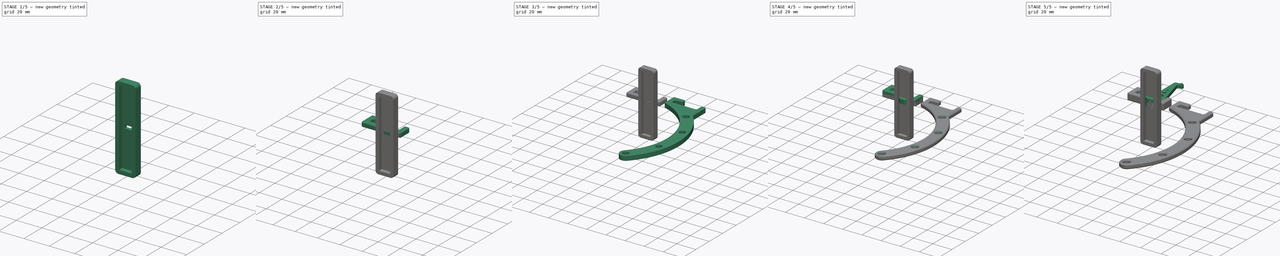
[diagram: build sequence overview — one tinted view per stage of 5, left to right]
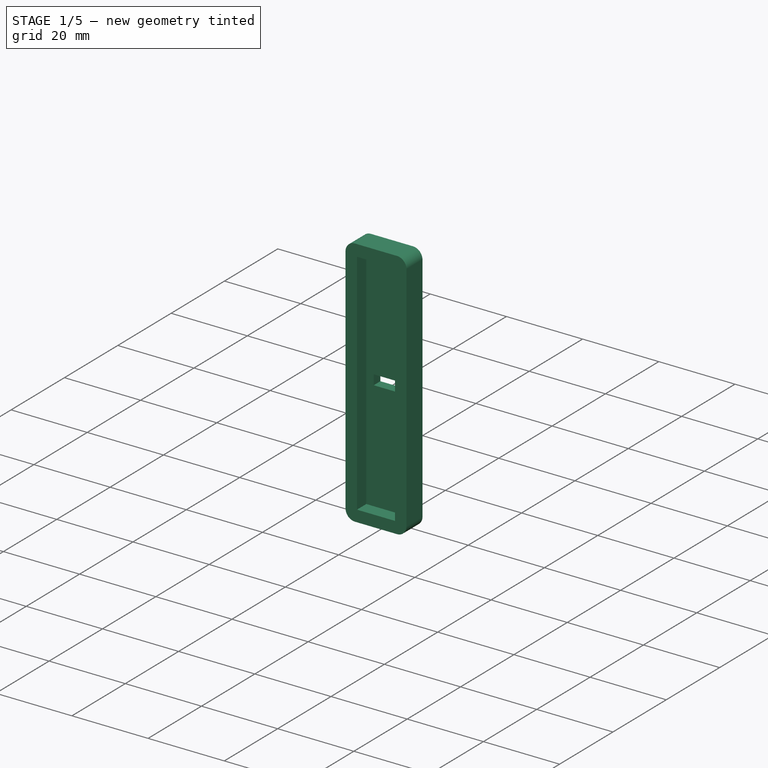
[diagram: stage 1 of 5 — iso view after this stage's code; geometry added in this stage tinted green]
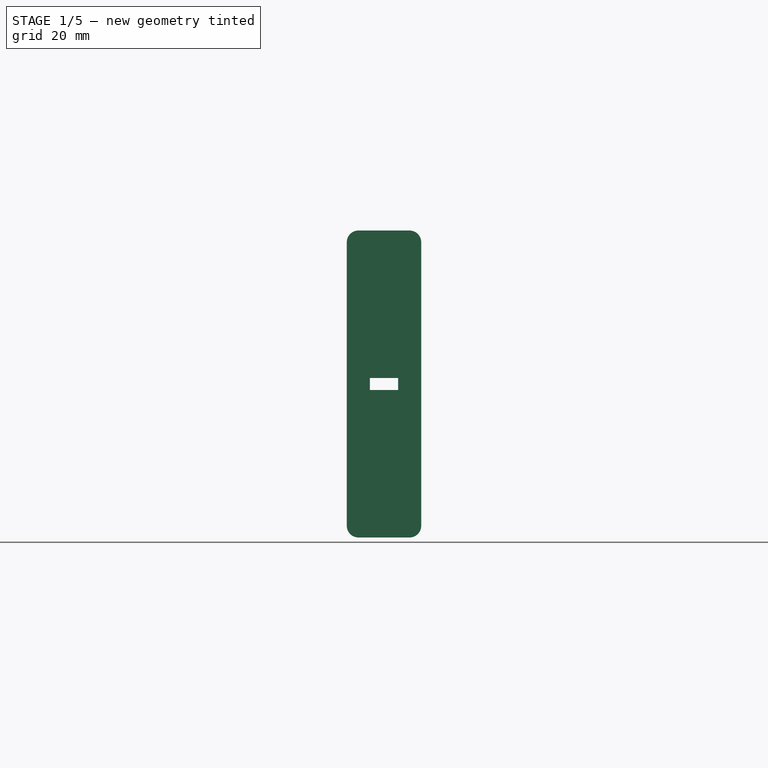
[diagram: stage 1 of 5 — front view after this stage's code; geometry added in this stage tinted green]
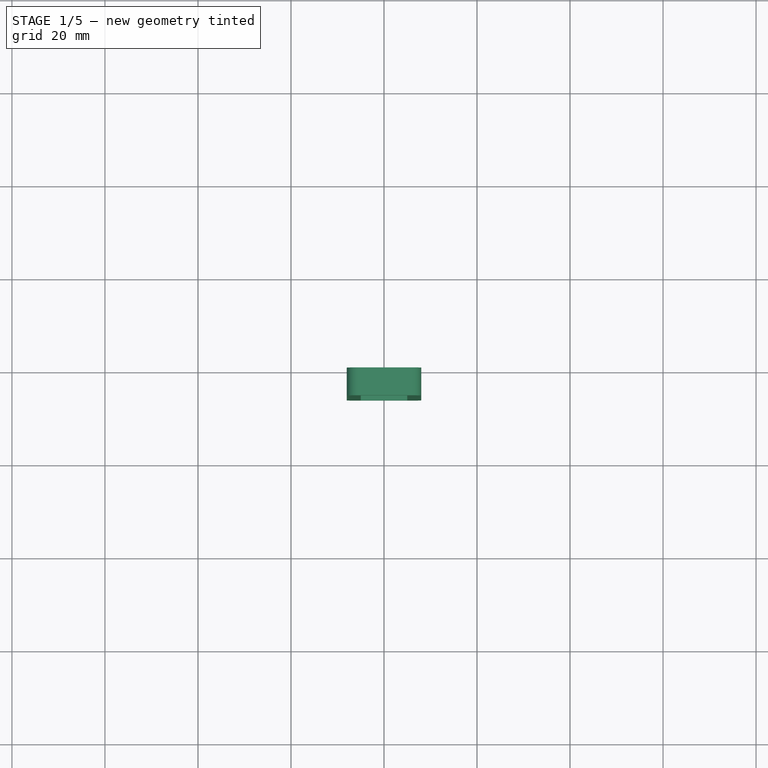
[diagram: stage 1 of 5 — top view after this stage's code; geometry added in this stage tinted green]
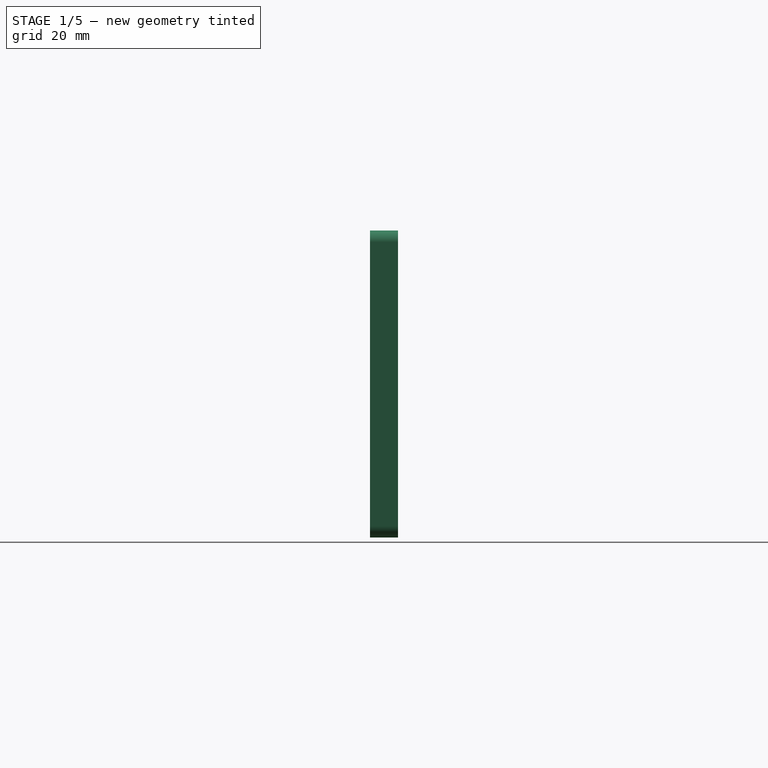
[diagram: stage 1 of 5 — right view after this stage's code; geometry added in this stage tinted green]
FCSTD DOCUMENT  (FreeCAD 0.20R29177 (Git))
Label: 2020-cable-holder
License: All rights reserved
LicenseURL: http://en.wikipedia.org/wiki/All_rights_reserved
objects: Sketcher::SketchObject×9, PartDesign::Pad×8, PartDesign::Fillet×6, PartDesign::Body×5, PartDesign::Chamfer×2, PartDesign::Pocket×1
note: 48 computed .brp shape members not serialized (recipe doc carries the construction recipe); baked Part::Feature solids carry a one-line shape summary decoded from their .brp

FEATURE [Sketcher::SketchObject] Sketch006
  FullyConstrained = true
  MapMode = 5
  Placement = pos=(0,0,0) rot=(1,0,0;1.5708rad)
  Support = -> [XZ_Plane004]
  sketch-geometry (12):
    g0: LineSegment StartX=-5 StartY=30 StartZ=0 EndX=5 EndY=30 EndZ=0
    g1: LineSegment StartX=5 StartY=30 StartZ=0 EndX=5 EndY=-30 EndZ=0
    g2: LineSegment StartX=5 StartY=-30 StartZ=0 EndX=-5 EndY=-30 EndZ=0
    g3: LineSegment StartX=-5 StartY=-30 StartZ=0 EndX=-5 EndY=30 EndZ=0
    g4: LineSegment StartX=-8 StartY=33 StartZ=0 EndX=8 EndY=33 EndZ=0
    g5: LineSegment StartX=8 StartY=33 StartZ=0 EndX=8 EndY=-33 EndZ=0
    g6: LineSegment StartX=8 StartY=-33 StartZ=0 EndX=-8 EndY=-33 EndZ=0
    g7: LineSegment StartX=-8 StartY=-33 StartZ=0 EndX=-8 EndY=33 EndZ=0
    g8: LineSegment StartX=-3.05 StartY=1.3 StartZ=0 EndX=3.05 EndY=1.3 EndZ=0
    g9: LineSegment StartX=3.05 StartY=1.3 StartZ=0 EndX=3.05 EndY=-1.3 EndZ=0
    g10: LineSegment StartX=3.05 StartY=-1.3 StartZ=0 EndX=-3.05 EndY=-1.3 EndZ=0
    g11: LineSegment StartX=-3.05 StartY=-1.3 StartZ=0 EndX=-3.05 EndY=1.3 EndZ=0
  constraints (33):
    c: Coincident(g0,g1)
    c: Coincident(g1,g2)
    c: Coincident(g2,g3)
    c: Coincident(g3,g0)
    c: Horizontal(g0)
    c: Horizontal(g2)
    c: Vertical(g1)
    c: Vertical(g3)
    c: DistanceY(g1,g1) = 60
    c: DistanceX(g0,g0) = 10
    c: Symmetric(g1,g0,g-1)
    c: Coincident(g4,g5)
    c: Coincident(g5,g6)
    c: Coincident(g6,g7)
    c: Coincident(g7,g4)
    c: Horizontal(g4)
    c: Horizontal(g6)
    c: Vertical(g5)
    c: Vertical(g7)
    c: Symmetric(g5,g4,g-1)
    c: DistanceY(g0,g4) = 3
    c: DistanceX(g4,g0) = 3
    c: Coincident(g8,g9)
    c: Coincident(g9,g10)
    c: Coincident(g10,g11)
    c: Coincident(g11,g8)
    c: Horizontal(g8)
    c: Horizontal(g10)
    c: Vertical(g9)
    c: Vertical(g11)
    c: Symmetric(g9,g8,g-1)
    c: DistanceY(g9,g9) = 2.6
    c: DistanceX(g8,g8) = 6.1
FEATURE [PartDesign::Pad] Pad006
  Direction = (0,-1,2e-16)
  Length = 6
  Length2 = 10
  Placement = pos=(0,0,0) rot=(1,0,0;1.5708rad)
  Profile = -> Sketch006
  ReferenceAxis = -> Sketch006 [N_Axis]
  Type = 0
FEATURE [Sketcher::SketchObject] Sketch007
  AttachmentOffset = pos=(0,0,2.5) rot=(0,0,1;0rad)
  FullyConstrained = true
  MapMode = 5
  Placement = pos=(0,-2.5,6e-16) rot=(1,0,0;1.5708rad)
  Support = -> [XZ_Plane004]
  sketch-geometry (4):
    g0: LineSegment StartX=-5 StartY=30 StartZ=0 EndX=5 EndY=30 EndZ=0
    g1: LineSegment StartX=5 StartY=30 StartZ=0 EndX=5 EndY=-30 EndZ=0
    g2: LineSegment StartX=5 StartY=-30 StartZ=0 EndX=-5 EndY=-30 EndZ=0
    g3: LineSegment StartX=-5 StartY=-30 StartZ=0 EndX=-5 EndY=30 EndZ=0
  constraints (11):
    c: Coincident(g0,g1)
    c: Coincident(g1,g2)
    c: Coincident(g2,g3)
    c: Coincident(g3,g0)
    c: Horizontal(g0)
    c: Horizontal(g2)
    c: Vertical(g1)
    c: Vertical(g3)
    c: DistanceY(g1,g1) = 60
    c: DistanceX(g0,g0) = 10
    c: Symmetric(g1,g0,g-1)
FEATURE [PartDesign::Pocket] Pocket
  BaseFeature = -> Pad006
  Direction = (0,1,-2e-16)
  Length = 5
  Length2 = 5
  Placement = pos=(0,0,0) rot=(1,0,0;1.5708rad)
  Profile = -> Sketch007
  ReferenceAxis = -> Sketch007 [N_Axis]
  Reversed = true
  Type = 1
FEATURE [PartDesign::Body] Body003  label="SkadisHookPLAIN"
  Group = -> [Sketch005,Pad005,Fillet003,Fillet004,Sketch008,Pad007,Chamfer001]
  Origin = -> Origin003
  Tip = -> Chamfer001
FEATURE [PartDesign::Fillet] Fillet005
  Base = -> Pocket [Edge5,Edge8,Edge2,Edge1]
  BaseFeature = -> Pocket
  Placement = pos=(0,0,0) rot=(1,0,0;1.5708rad)
  Radius = 2.5
  SupportTransform = false
  UseAllEdges = false
FEATURE [PartDesign::Body] Body004  label="BarMagnetHolder"
  Group = -> [Sketch006,Pad006,Sketch007,Pocket,Fillet005]
  Origin = -> Origin004
  Tip = -> Fillet005
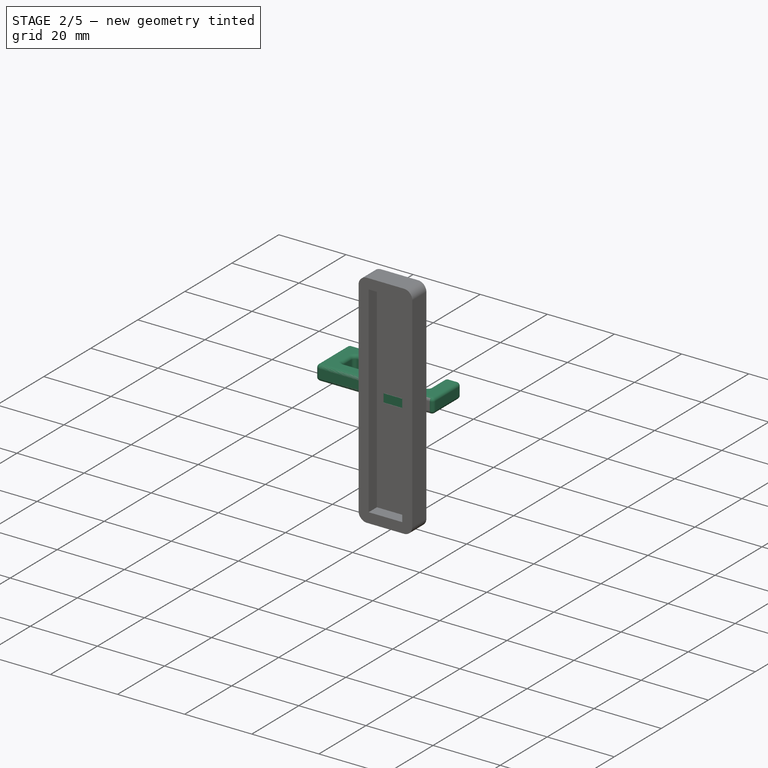
[diagram: stage 2 of 5 — iso view after this stage's code; geometry added in this stage tinted green]
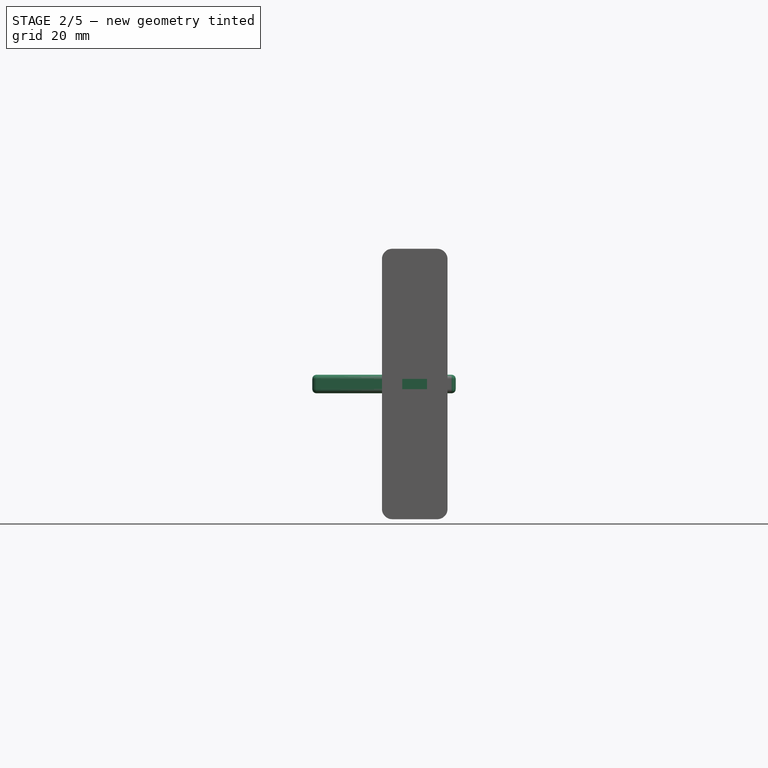
[diagram: stage 2 of 5 — front view after this stage's code; geometry added in this stage tinted green]
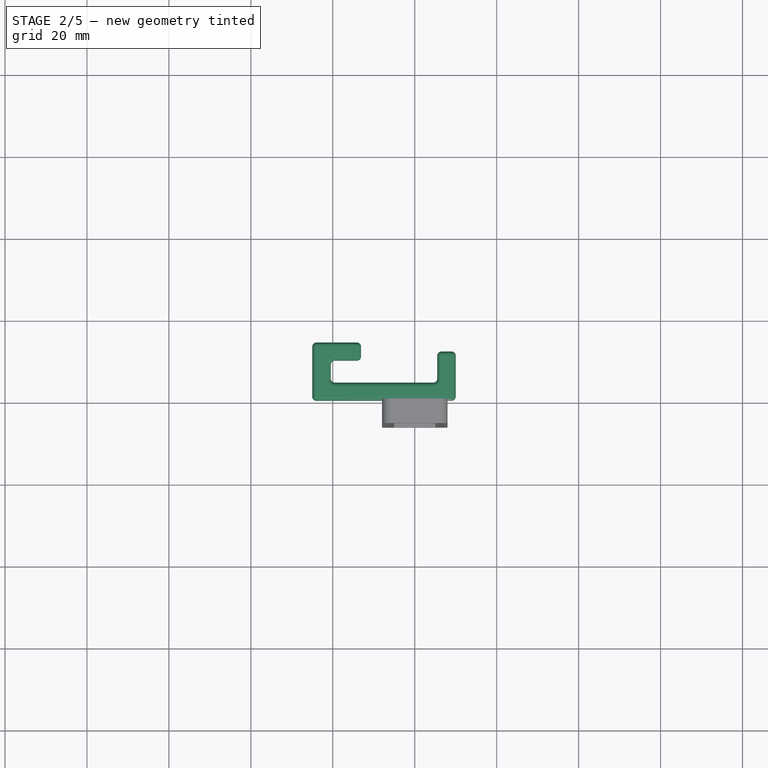
[diagram: stage 2 of 5 — top view after this stage's code; geometry added in this stage tinted green]
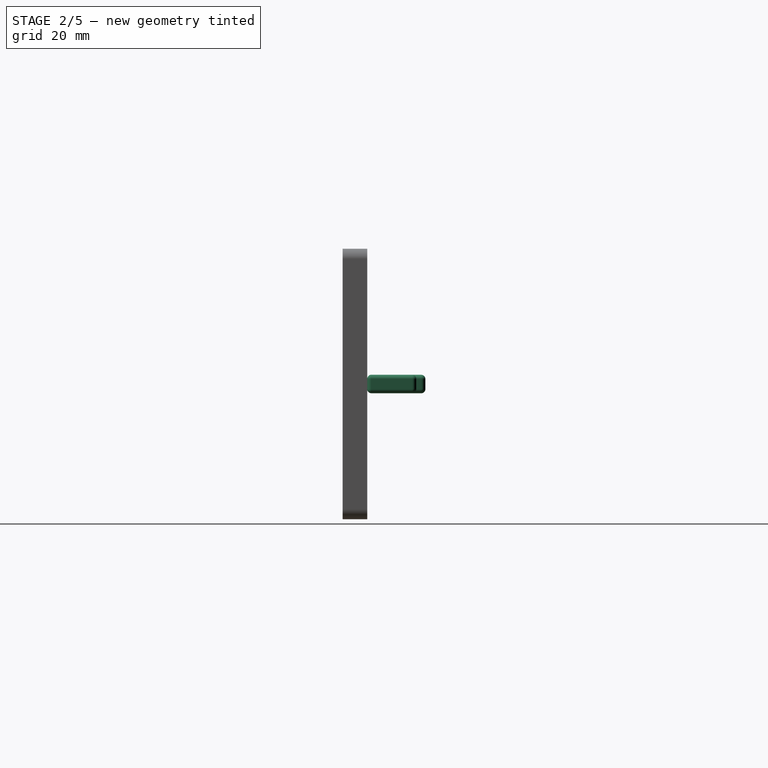
[diagram: stage 2 of 5 — right view after this stage's code; geometry added in this stage tinted green]
FEATURE [PartDesign::Body] Body002  label="TapeHolder"
  Group = -> [Sketch004,Pad004,Fillet002,Chamfer]
  Origin = -> Origin002
  Tip = -> Chamfer
FEATURE [Sketcher::SketchObject] Sketch005  label="SketchBase004"
  FullyConstrained = false
  MapMode = 5
  Support = -> [XY_Plane003]
  sketch-geometry (14):
    g0: LineSegment StartX=-10 StartY=-0.376169 StartZ=0 EndX=10 EndY=-0.376169 EndZ=0
    g1: LineSegment StartX=10 StartY=-0.376169 StartZ=0 EndX=10 EndY=-20.3762 EndZ=0
    g2: LineSegment StartX=10 StartY=-20.3762 StartZ=0 EndX=-10 EndY=-20.3762 EndZ=0
    g3: LineSegment StartX=-10 StartY=-20.3762 StartZ=0 EndX=-10 EndY=-0.376169 EndZ=0
    g4: LineSegment StartX=-25 StartY=0 StartZ=0 EndX=-25 EndY=14.2 EndZ=0
    g5: LineSegment StartX=-25 StartY=14.2 StartZ=0 EndX=-13.1 EndY=14.2 EndZ=0
    g6: LineSegment StartX=-13.1 StartY=14.2 StartZ=0 EndX=-13.1 EndY=9.8 EndZ=0
    g7: LineSegment StartX=-13.1 StartY=9.8 StartZ=0 EndX=-20.5 EndY=9.8 EndZ=0
    g8: LineSegment StartX=-20.5 StartY=9.8 StartZ=0 EndX=-20.5 EndY=4.4 EndZ=0
    g9: LineSegment StartX=-20.5 StartY=4.4 StartZ=0 EndX=5.5 EndY=4.4 EndZ=0
    g10: LineSegment StartX=5.5 StartY=4.4 StartZ=0 EndX=5.5 EndY=12 EndZ=0
    g11: LineSegment StartX=5.5 StartY=12 StartZ=0 EndX=10 EndY=12 EndZ=0
    g12: LineSegment StartX=10 StartY=12 StartZ=0 EndX=10 EndY=0 EndZ=0
    g13: LineSegment StartX=-25 StartY=0 StartZ=0 EndX=10 EndY=0 EndZ=0
  constraints (39):
    c: Coincident(g0,g1)
    c: Coincident(g1,g2)
    c: Coincident(g2,g3)
    c: Coincident(g3,g0)
    c: Horizontal(g2)
    c: Vertical(g1)
    c: Vertical(g3)
    c: Symmetric(g0,g0,g-2)
    c: DistanceX(g2,g2) = 20
    c: DistanceY(g1,g1) = 20
    c: Vertical(g4)
    c: Coincident(g4,g5)
    c: Horizontal(g5)
    c: Coincident(g5,g6)
    c: Vertical(g6)
    c: Coincident(g6,g7)
    c: Horizontal(g7)
    c: Coincident(g7,g8)
    c: Vertical(g8)
    c: Coincident(g8,g9)
    c: Horizontal(g9)
    c: Coincident(g9,g10)
    c: Vertical(g10)
    c: Coincident(g10,g11)
    c: Horizontal(g11)
    c: Coincident(g11,g12)
    c: Vertical(g12)
    c: DistanceX(g9,g9) = 26
    c: DistanceY(g4,g8) = 4.4
    c: DistanceY(g6,g5) = 4.4
    c: DistanceX(g4,g7) = 4.5
    c: DistanceY(g8,g8) = 5.4
    c: DistanceX(g5,g5) = 11.9
    c: DistanceX(g11,g11) = 4.5
    c: DistanceY(g12,g12) = 12
    c: Vertical(g1,g12)
    c: Coincident(g13,g4)
    c: Coincident(g13,g12)
    c: Horizontal(g13)
FEATURE [PartDesign::Pad] Pad005
  Direction = (0,0,1)
  Length = 4.5
  Length2 = 10
  Midplane = true
  Profile = -> Sketch005
  ReferenceAxis = -> Sketch005 [N_Axis]
  Type = 0
FEATURE [PartDesign::Fillet] Fillet003
  Base = -> Pad005 [Edge1,Edge2,Edge11,Edge5,Edge8,Edge14,Edge20,Edge17,Edge23,Edge26]
  BaseFeature = -> Pad005
  Radius = 1
  SupportTransform = false
  UseAllEdges = false
FEATURE [PartDesign::Fillet] Fillet004
  Base = -> Fillet003 [Edge23,Edge44]
  BaseFeature = -> Fillet003
  Radius = 1
  SupportTransform = false
  UseAllEdges = false
FEATURE [Sketcher::SketchObject] Sketch008
  FullyConstrained = true
  MapMode = 5
  Support = -> [XY_Plane003]
  sketch-geometry (4):
    g0: LineSegment StartX=-3 StartY=0 StartZ=0 EndX=3 EndY=0 EndZ=0
    g1: LineSegment StartX=3 StartY=0 StartZ=0 EndX=3 EndY=-2.5 EndZ=0
    g2: LineSegment StartX=3 StartY=-2.5 StartZ=0 EndX=-3 EndY=-2.5 EndZ=0
    g3: LineSegment StartX=-3 StartY=-2.5 StartZ=0 EndX=-3 EndY=0 EndZ=0
  constraints (11):
    c: Coincident(g0,g1)
    c: Coincident(g1,g2)
    c: Coincident(g2,g3)
    c: Coincident(g3,g0)
    c: Horizontal(g2)
    c: Vertical(g1)
    c: Vertical(g3)
    c: PointOnObject(g0,g-1)
    c: Symmetric(g0,g0,g-2)
    c: DistanceX(g0,g0) = 6
    c: DistanceY(g1,g1) = 2.5
FEATURE [PartDesign::Pad] Pad007
  BaseFeature = -> Fillet004
  Direction = (0,0,1)
  Length = 2.5
  Length2 = 10
  Midplane = true
  Profile = -> Sketch008
  ReferenceAxis = -> Sketch008 [N_Axis]
  Type = 0
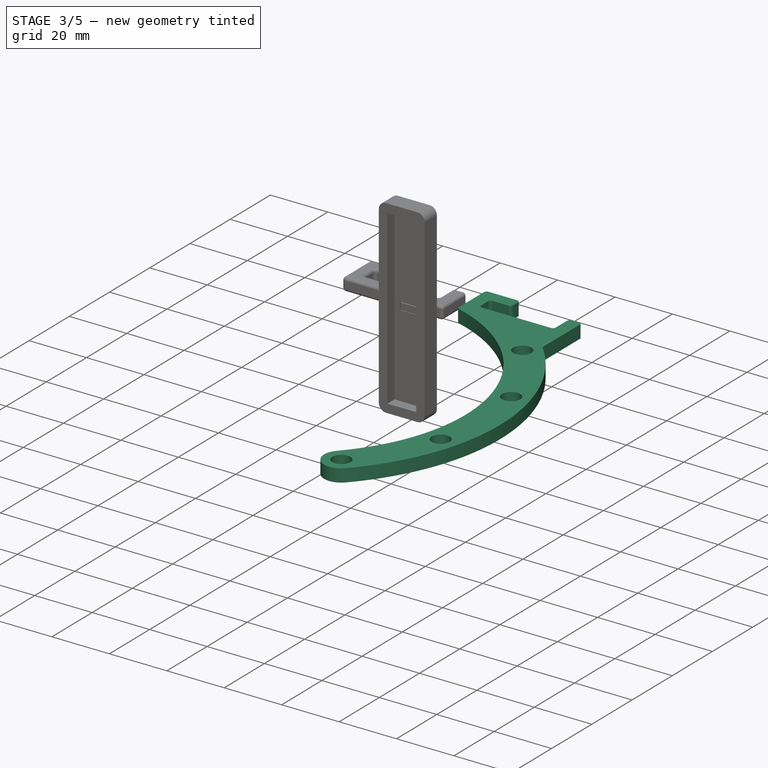
[diagram: stage 3 of 5 — iso view after this stage's code; geometry added in this stage tinted green]
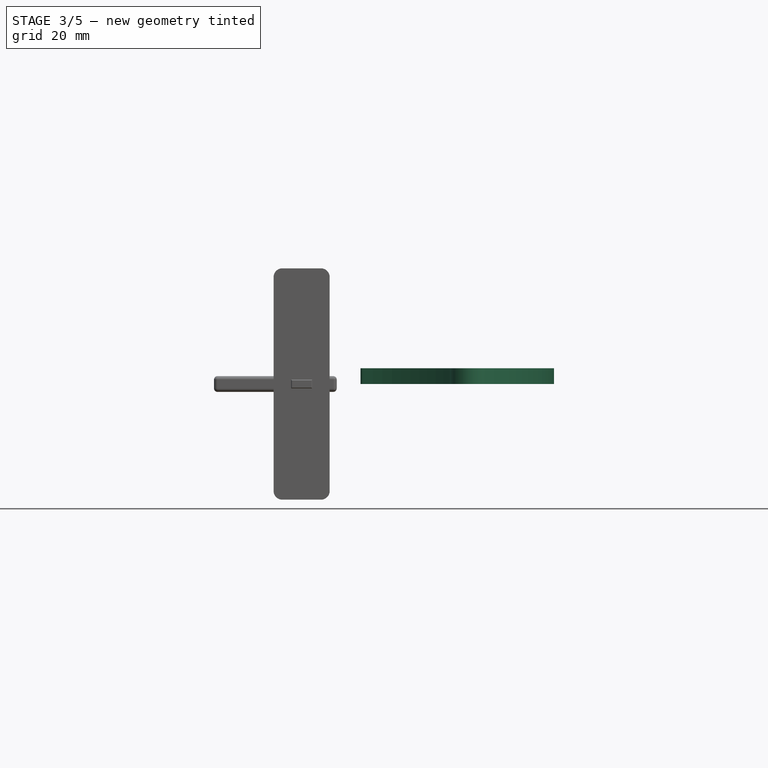
[diagram: stage 3 of 5 — front view after this stage's code; geometry added in this stage tinted green]
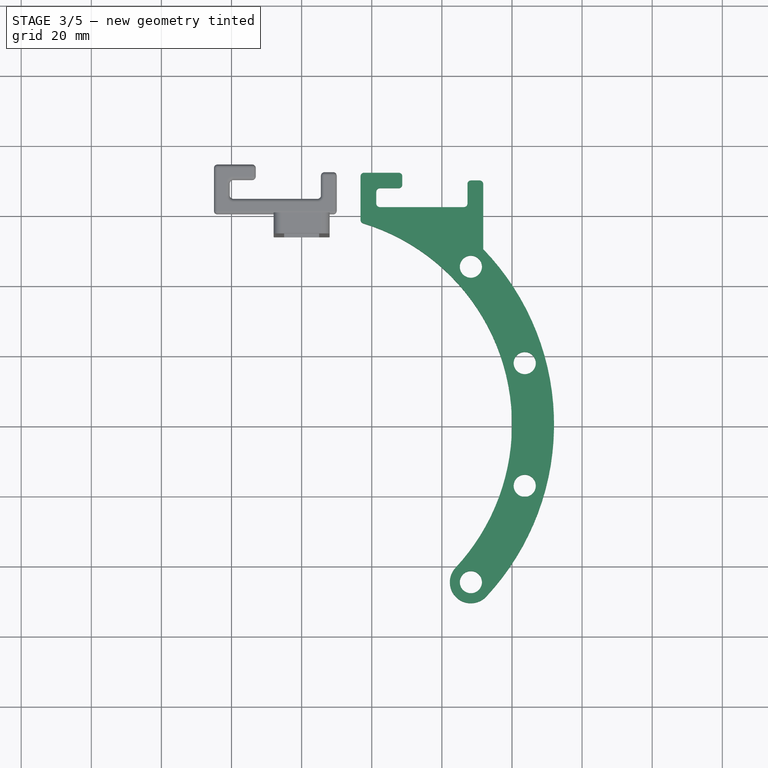
[diagram: stage 3 of 5 — top view after this stage's code; geometry added in this stage tinted green]
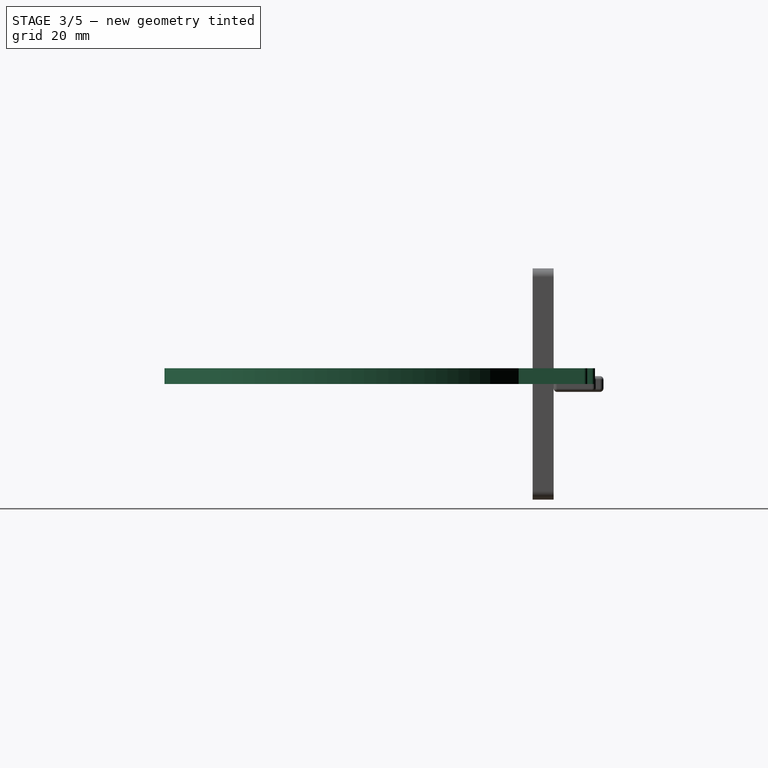
[diagram: stage 3 of 5 — right view after this stage's code; geometry added in this stage tinted green]
FEATURE [PartDesign::Body] Body001  label="SkadisHook"
  Group = -> [Sketch003,Pad003,Fillet,Fillet001]
  Origin = -> Origin001
  Tip = -> Fillet001
FEATURE [Sketcher::SketchObject] Sketch004  label="SketchBase003"
  FullyConstrained = false
  MapMode = 5
  Support = -> [XY_Plane002]
  sketch-geometry (23):
    g0: LineSegment StartX=16.8 StartY=-2.4 StartZ=0 EndX=16.8 EndY=11.8 EndZ=0
    g1: LineSegment StartX=16.8 StartY=11.8 StartZ=0 EndX=28.7 EndY=11.8 EndZ=0
    g2: LineSegment StartX=28.7 StartY=11.8 StartZ=0 EndX=28.7 EndY=7.4 EndZ=0
    g3: LineSegment StartX=28.7 StartY=7.4 StartZ=0 EndX=21.3 EndY=7.4 EndZ=0
    g4: LineSegment StartX=21.3 StartY=7.4 StartZ=0 EndX=21.3 EndY=2 EndZ=0
    g5: LineSegment StartX=21.3 StartY=2 StartZ=0 EndX=47.3 EndY=2 EndZ=0
    g6: LineSegment StartX=47.3 StartY=2 StartZ=0 EndX=47.3 EndY=9.6 EndZ=0
    g7: LineSegment StartX=47.3 StartY=9.6 StartZ=0 EndX=51.8 EndY=9.6 EndZ=0
    g8: LineSegment StartX=51.8 StartY=9.6 StartZ=0 EndX=51.8 EndY=-2.4 EndZ=0
    g9: LineSegment StartX=51.8 StartY=-2.4 StartZ=0 EndX=16.8 EndY=-2.4 EndZ=0
    g10: Circle CenterX=0 CenterY=-60 CenterZ=0 NormalX=0 NormalY=0 NormalZ=1 AngleXU=0 Radius=60
    g11: Circle CenterX=63.6376 CenterY=-42.5 CenterZ=0 NormalX=0 NormalY=0 NormalZ=1 AngleXU=0 Radius=3.16
    g12: Circle CenterX=0 CenterY=-60 CenterZ=0 NormalX=0 NormalY=0 NormalZ=1 AngleXU=0 Radius=66
    g13: Circle CenterX=63.6376 CenterY=-77.5 CenterZ=0 NormalX=0 NormalY=0 NormalZ=1 AngleXU=0 Radius=3.16
    g14: Circle CenterX=48.2804 CenterY=-15 CenterZ=0 NormalX=0 NormalY=0 NormalZ=1 AngleXU=0 Radius=3.16
    g15: Circle CenterX=48.2804 CenterY=-105 CenterZ=0 NormalX=0 NormalY=0 NormalZ=1 AngleXU=0 Radius=3.16
    g16: Circle CenterX=0 CenterY=-60 CenterZ=0 NormalX=0 NormalY=0 NormalZ=1 AngleXU=0 Radius=72
    g17: ArcOfCircle CenterX=48.2804 CenterY=-105 CenterZ=0 NormalX=0 NormalY=0 NormalZ=1 AngleXU=0 Radius=6 StartAngle=2.39132 EndAngle=5.53291
    g18: LineSegment StartX=52.6694 StartY=-109.091 StartZ=0 EndX=43.8914 EndY=-100.909 EndZ=0
    g19: GeomPoint X=34.3 Y=-2.4 Z=0
    g20: ArcOfCircle CenterX=0 CenterY=-60 CenterZ=0 NormalX=0 NormalY=0 NormalZ=1 AngleXU=0 Radius=60 StartAngle=5.53294 EndAngle=7.57019
    g21: ArcOfCircle CenterX=0 CenterY=-60 CenterZ=0 NormalX=0 NormalY=0 NormalZ=1 AngleXU=0 Radius=72 StartAngle=5.53294 EndAngle=7.05098
    g22: LineSegment StartX=51.8 StartY=-9.9924 StartZ=0 EndX=51.8 EndY=-2.4 EndZ=0
  constraints (62):
    c: Coincident(g9,g0)
    c: Vertical(g0)
    c: Coincident(g0,g1)
    c: Horizontal(g1)
    c: Coincident(g1,g2)
    c: Vertical(g2)
    c: Coincident(g2,g3)
    c: Horizontal(g3)
    c: Coincident(g3,g4)
    c: Vertical(g4)
    c: Coincident(g4,g5)
    c: Horizontal(g5)
    c: Coincident(g5,g6)
    c: Vertical(g6)
    c: Coincident(g6,g7)
    c: Horizontal(g7)
    c: Coincident(g7,g8)
    c: Vertical(g8)
    c: DistanceX(g5,g5) = 26
    c: DistanceY(g9,g4) = 4.4
    c: DistanceY(g2,g1) = 4.4
    c: DistanceX(g0,g3) = 4.5
    c: DistanceY(g4,g4) = 5.4
    c: DistanceX(g1,g1) = 11.9
    c: DistanceX(g7,g7) = 4.5
    c: DistanceY(g8,g8) = 12
    c: Horizontal(g9)
    c: Coincident(g9,g8)
    c: PointOnObject(g10,g-2)
    c: Diameter(g10) = 120
    c: Tangent(g10,g-1)
    c: Diameter(g11) = 6.32
    c: Coincident(g12,g10)
    c: PointOnObject(g11,g12)
    c: Equal(g11,g13)
    c: PointOnObject(g13,g12)
    c: Vertical(g13,g11)
    c: PointOnObject(g14,g12)
    c: PointOnObject(g15,g12)
    c: Equal(g11,g14)
    c: Equal(g11,g15)
    c: Vertical(g14,g15)
    c: DistanceY(g13,g11) = 35
    c: DistanceY(g15,g14) = 90
    c: Coincident(g16,g10)
    c: Coincident(g17,g15)
    c: PointOnObject(g17,g10)
    c: PointOnObject(g17,g16)
    c: Coincident(g18,g17)
    c: PointOnObject(g15,g18)
    c: Coincident(g17,g18)
    c: Symmetric(g8,g0,g19)
    c: Coincident(g20,g10)
    c: Coincident(g20,g17)
    c: Coincident(g21,g20)
    c: Coincident(g21,g17)
    c: DistanceY(g-1,g4) = 2
    c: Distance(g18) = 12
    c: Coincident(g0,g20)
    c: Coincident(g22,g21)
    c: Coincident(g22,g8)
    c: Vertical(g22)
FEATURE [PartDesign::Pad] Pad004
  Direction = (0,0,1)
  Length = 4.5
  Length2 = 10
  Profile = -> Sketch004
  ReferenceAxis = -> Sketch004 [N_Axis]
  Type = 0
FEATURE [PartDesign::Fillet] Fillet002
  Base = -> Pad004 [Edge20,Edge23,Edge26,Edge8,Edge11,Edge14,Edge17,Edge5,Edge2]
  BaseFeature = -> Pad004
  Radius = 1
  SupportTransform = false
  UseAllEdges = false
FEATURE [PartDesign::Chamfer] Chamfer001
  Angle = 45
  Base = -> Pad007 [Edge127,Edge61,Edge122,Edge126]
  BaseFeature = -> Pad007
  ChamferType = 0
  FlipDirection = false
  Size = 0.2
  Size2 = 1
  SupportTransform = false
  UseAllEdges = false
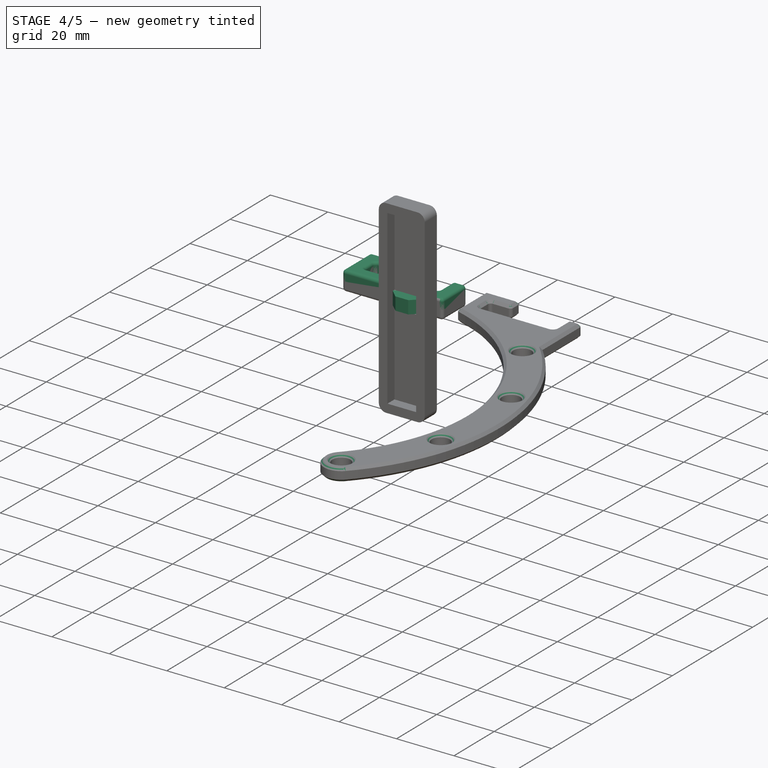
[diagram: stage 4 of 5 — iso view after this stage's code; geometry added in this stage tinted green]
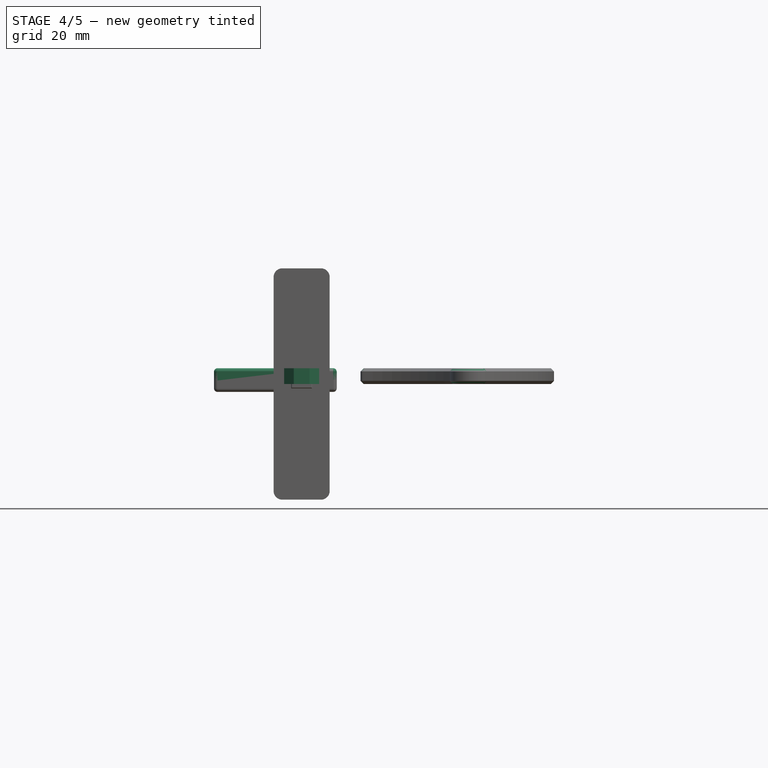
[diagram: stage 4 of 5 — front view after this stage's code; geometry added in this stage tinted green]
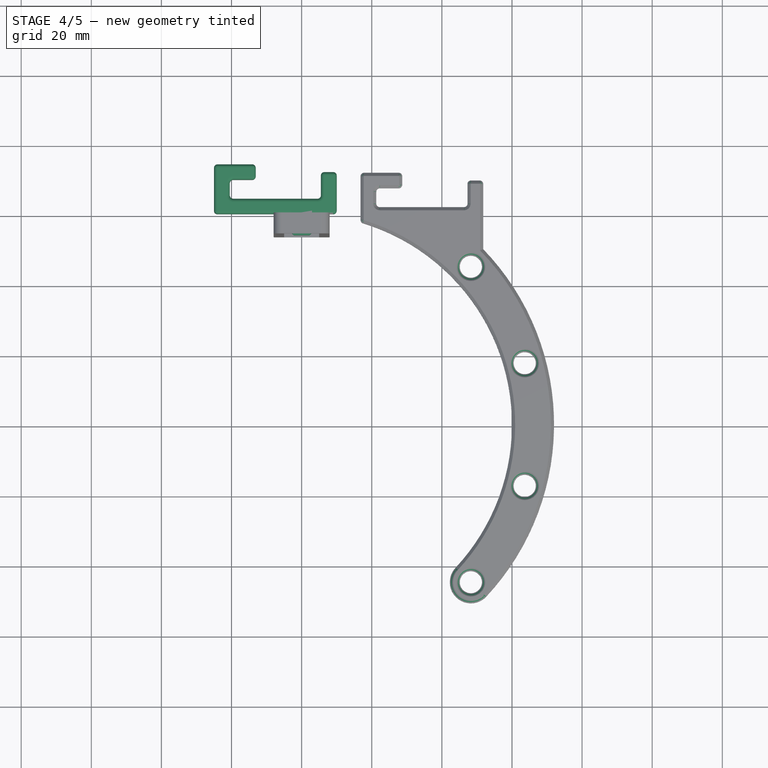
[diagram: stage 4 of 5 — top view after this stage's code; geometry added in this stage tinted green]
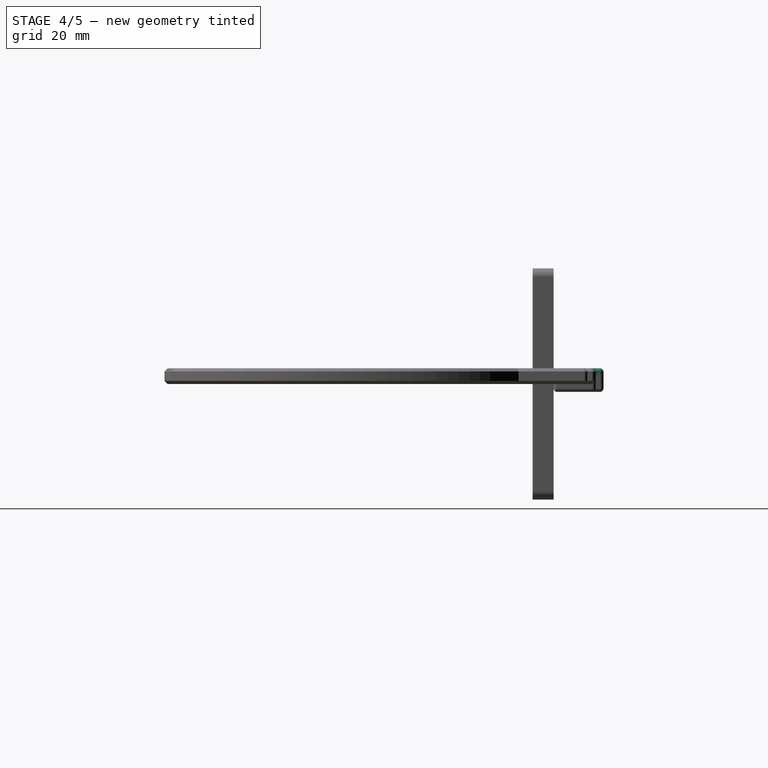
[diagram: stage 4 of 5 — right view after this stage's code; geometry added in this stage tinted green]
FEATURE [PartDesign::Body] Body  label="Tine"
  Group = -> [Sketch,Pad,Sketch001,Pad001,Sketch002,Pad002]
  Origin = -> Origin
  Tip = -> Pad002
FEATURE [Sketcher::SketchObject] Sketch003  label="SketchBase002"
  FullyConstrained = false
  MapMode = 5
  Support = -> [XY_Plane001]
  sketch-geometry (24):
    g0: LineSegment StartX=2.95 StartY=0 StartZ=0 EndX=2.95 EndY=-1.98 EndZ=0
    g1: LineSegment StartX=2.95 StartY=-1.98 StartZ=0 EndX=5.4 EndY=-1.98 EndZ=0
    g2: LineSegment StartX=5.4 StartY=-1.98 StartZ=0 EndX=5.4 EndY=-2.98 EndZ=0
    g3: LineSegment StartX=5.4 StartY=-2.98 StartZ=0 EndX=2.25 EndY=-5.98 EndZ=0
    g4: LineSegment StartX=2.25 StartY=-5.98 StartZ=0 EndX=-2.25 EndY=-5.98 EndZ=0
    g5: LineSegment StartX=-2.25 StartY=-5.98 StartZ=0 EndX=-5.4 EndY=-2.98 EndZ=0
    g6: LineSegment StartX=-5.4 StartY=-2.98 StartZ=0 EndX=-5.4 EndY=-1.98 EndZ=0
    g7: LineSegment StartX=-5.4 StartY=-1.98 StartZ=0 EndX=-2.95 EndY=-1.98 EndZ=0
    g8: LineSegment StartX=-2.95 StartY=-1.98 StartZ=0 EndX=-2.95 EndY=0 EndZ=0
    g9: LineSegment StartX=-10 StartY=-0.376169 StartZ=0 EndX=10 EndY=-0.376169 EndZ=0
    g10: LineSegment StartX=10 StartY=-0.376169 StartZ=0 EndX=10 EndY=-20.3762 EndZ=0
    g11: LineSegment StartX=10 StartY=-20.3762 StartZ=0 EndX=-10 EndY=-20.3762 EndZ=0
    g12: LineSegment StartX=-10 StartY=-20.3762 StartZ=0 EndX=-10 EndY=-0.376169 EndZ=0
    g13: LineSegment StartX=10 StartY=9e-16 StartZ=0 EndX=2.95 EndY=0 EndZ=0
    g14: LineSegment StartX=-25 StartY=0 StartZ=0 EndX=-25 EndY=14.2 EndZ=0
    g15: LineSegment StartX=-25 StartY=14.2 StartZ=0 EndX=-13.1 EndY=14.2 EndZ=0
    g16: LineSegment StartX=-13.1 StartY=14.2 StartZ=0 EndX=-13.1 EndY=9.8 EndZ=0
    g17: LineSegment StartX=-13.1 StartY=9.8 StartZ=0 EndX=-20.5 EndY=9.8 EndZ=0
    g18: LineSegment StartX=-20.5 StartY=9.8 StartZ=0 EndX=-20.5 EndY=4.4 EndZ=0
    g19: LineSegment StartX=-20.5 StartY=4.4 StartZ=0 EndX=5.5 EndY=4.4 EndZ=0
    g20: LineSegment StartX=5.5 StartY=4.4 StartZ=0 EndX=5.5 EndY=12 EndZ=0
    g21: LineSegment StartX=5.5 StartY=12 StartZ=0 EndX=10 EndY=12 EndZ=0
    g22: LineSegment StartX=10 StartY=12 StartZ=0 EndX=10 EndY=0 EndZ=0
    g23: LineSegment StartX=-2.95 StartY=0 StartZ=0 EndX=-25 EndY=0 EndZ=0
  constraints (69):
    c: Vertical(g0)
    c: Coincident(g0,g1)
    c: Horizontal(g1)
    c: Coincident(g1,g2)
    c: Coincident(g2,g3)
    c: Coincident(g3,g4)
    c: Coincident(g4,g5)
    c: Coincident(g5,g6)
    c: Coincident(g6,g7)
    c: Horizontal(g7)
    c: Coincident(g7,g8)
    c: DistanceY(g0,g0) = 1.98
    c: Vertical(g8)
    c: Equal(g8,g0)
    c: Equal(g7,g1)
    c: DistanceX(g6,g1) = 10.8
    c: DistanceX(g4,g4) = 4.5
    c: Symmetric(g4,g3,g-2)
    c: Equal(g6,g2)
    c: Equal(g3,g5)
    c: Vertical(g2)
    c: DistanceY(g2,g2) = 1
    c: DistanceY(g3,g1) = 4
    c: Coincident(g9,g10)
    c: Coincident(g10,g11)
    c: Coincident(g11,g12)
    c: Coincident(g12,g9)
    c: Horizontal(g11)
    c: Vertical(g10)
    c: Vertical(g12)
    c: Symmetric(g9,g9,g-2)
    c: DistanceX(g11,g11) = 20
    c: DistanceY(g10,g10) = 20
    c: Coincident(g23,g14)
    c: Vertical(g14)
    c: Coincident(g14,g15)
    c: Horizontal(g15)
    c: Coincident(g15,g16)
    c: Vertical(g16)
    c: Coincident(g16,g17)
    c: Horizontal(g17)
    c: Coincident(g17,g18)
    c: Vertical(g18)
    c: Coincident(g18,g19)
    c: Horizontal(g19)
    c: Coincident(g19,g20)
    c: Vertical(g20)
    c: Coincident(g20,g21)
    c: Horizontal(g21)
    c: Coincident(g21,g22)
    c: Coincident(g22,g13)
    c: Vertical(g22)
    c: DistanceX(g19,g19) = 26
    c: DistanceY(g23,g18) = 4.4
    c: DistanceY(g16,g15) = 4.4
    c: DistanceX(g14,g17) = 4.5
    c: DistanceY(g18,g18) = 5.4
    c: DistanceX(g15,g15) = 11.9
    c: DistanceX(g21,g21) = 4.5
    c: DistanceY(g22,g22) = 12
    c: PointOnObject(g13,g0)
    c: Horizontal(g23)
    c: Vertical(g6)
    c: PointOnObject(g8,g-1)
    c: PointOnObject(g0,g-1)
    c: Tangent(g13,g-1) = 1.5708
    c: DistanceX(g8,g0) = 5.9
    c: Coincident(g8,g23)
    c: Vertical(g10,g13)
FEATURE [PartDesign::Pad] Pad003
  Direction = (0,0,1)
  Length = 4.5
  Length2 = 10
  Profile = -> Sketch003
  ReferenceAxis = -> Sketch003 [N_Axis]
  Type = 0
FEATURE [PartDesign::Fillet] Fillet
  Base = -> Pad003 [Edge41,Edge44,Edge38,Edge35,Edge32,Edge29,Edge50,Edge47,Edge53,Edge56]
  BaseFeature = -> Pad003
  Radius = 1
  SupportTransform = false
  UseAllEdges = false
FEATURE [PartDesign::Fillet] Fillet001
  Base = -> Fillet [Edge58,Edge27]
  BaseFeature = -> Fillet
  Radius = 1
  SupportTransform = false
  UseAllEdges = false
FEATURE [PartDesign::Chamfer] Chamfer
  Angle = 45
  Base = -> Fillet002 [Face2,Face5]
  BaseFeature = -> Fillet002
  ChamferType = 0
  FlipDirection = false
  Size = 0.9
  Size2 = 1
  SupportTransform = false
  UseAllEdges = false
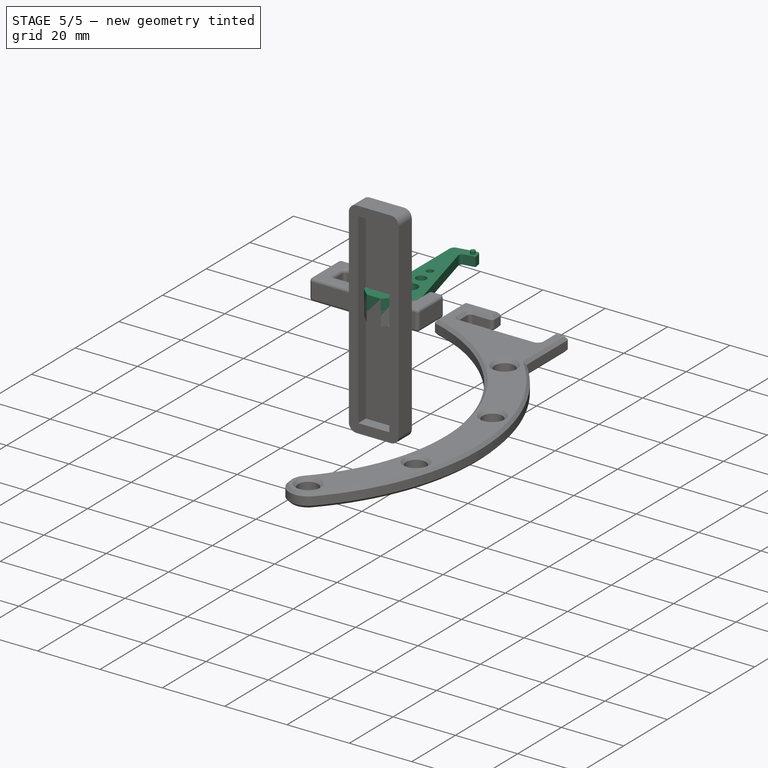
[diagram: stage 5 of 5 — iso view after this stage's code; geometry added in this stage tinted green]
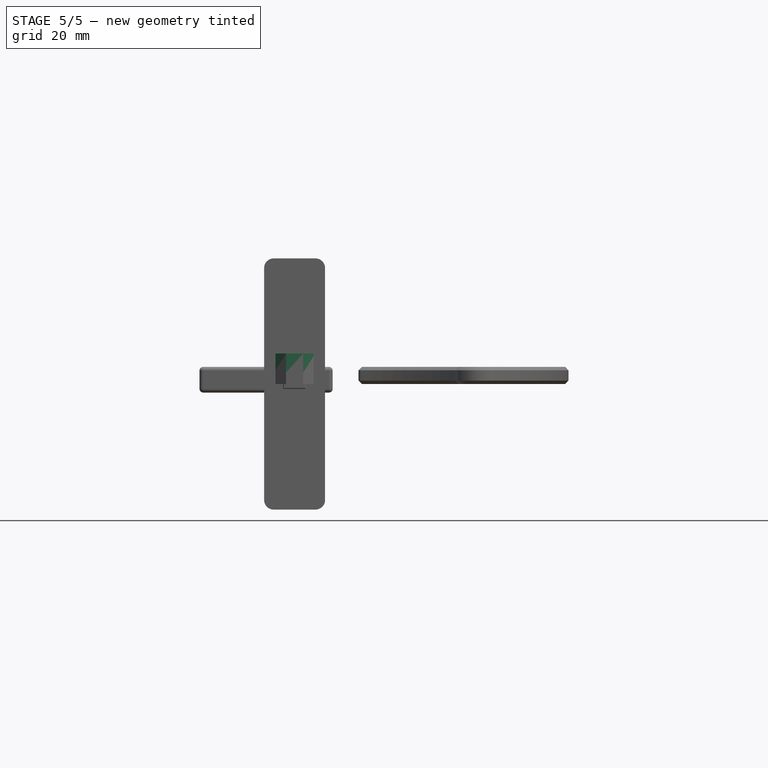
[diagram: stage 5 of 5 — front view after this stage's code; geometry added in this stage tinted green]
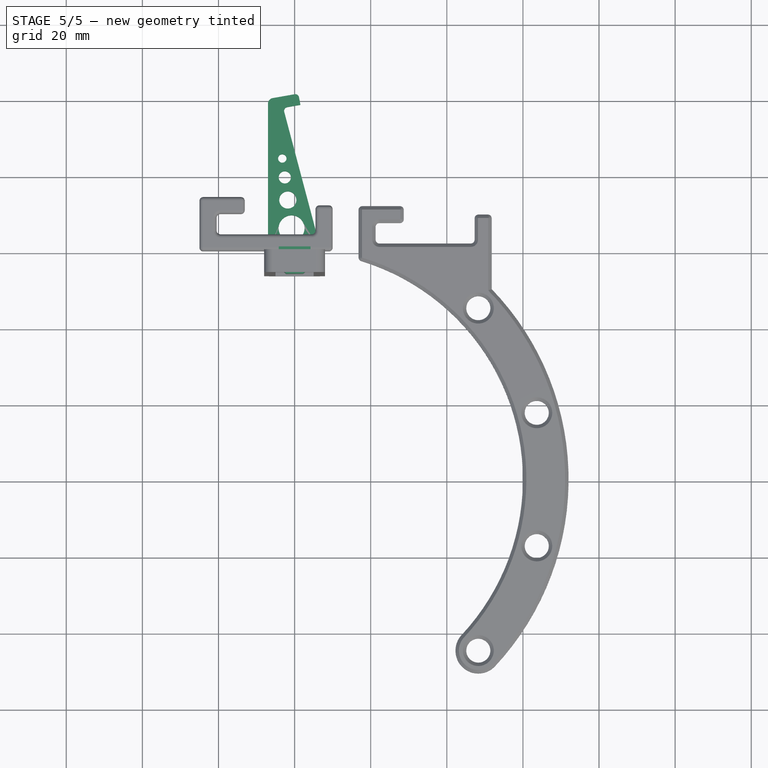
[diagram: stage 5 of 5 — top view after this stage's code; geometry added in this stage tinted green]
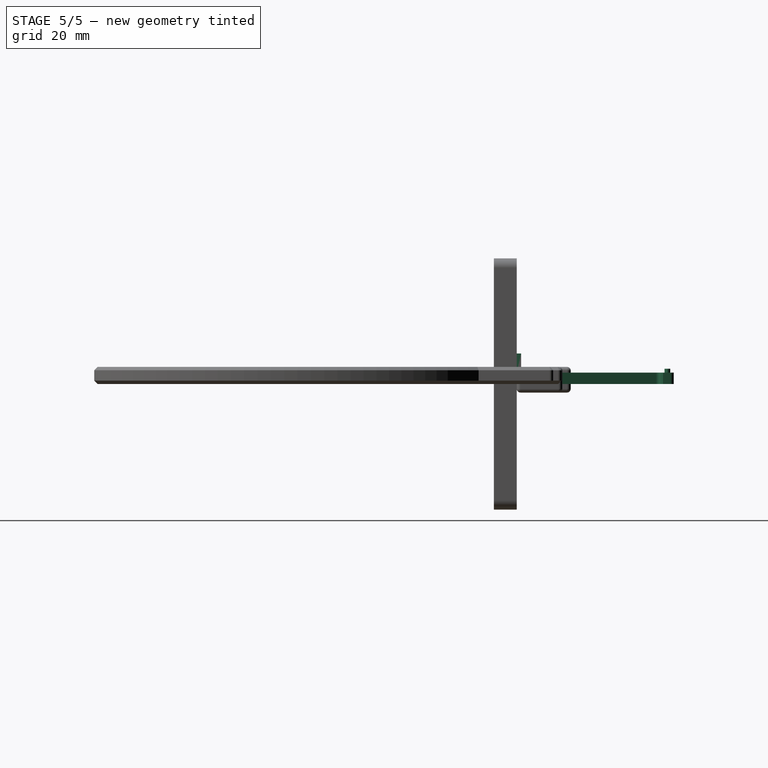
[diagram: stage 5 of 5 — right view after this stage's code; geometry added in this stage tinted green]
FEATURE [Sketcher::SketchObject] Sketch  label="SketchBase"
  FullyConstrained = false
  MapMode = 5
  Support = -> [XY_Plane]
  sketch-geometry (34):
    g0: LineSegment StartX=-2.95 StartY=0 StartZ=0 EndX=2.95 EndY=0 EndZ=0
    g1: LineSegment StartX=2.95 StartY=0 StartZ=0 EndX=2.95 EndY=-1.98 EndZ=0
    g2: LineSegment StartX=2.95 StartY=-1.98 StartZ=0 EndX=5.4 EndY=-1.98 EndZ=0
    g3: LineSegment StartX=5.4 StartY=-1.98 StartZ=0 EndX=5.4 EndY=-2.98 EndZ=0
    g4: LineSegment StartX=5.4 StartY=-2.98 StartZ=0 EndX=2.25 EndY=-5.98 EndZ=0
    g5: LineSegment StartX=2.25 StartY=-5.98 StartZ=0 EndX=-2.25 EndY=-5.98 EndZ=0
    g6: LineSegment StartX=-2.25 StartY=-5.98 StartZ=0 EndX=-5.4 EndY=-2.98 EndZ=0
    g7: LineSegment StartX=-5.4 StartY=-2.98 StartZ=0 EndX=-5.4 EndY=-1.98 EndZ=0
    g8: LineSegment StartX=-5.4 StartY=-1.98 StartZ=0 EndX=-2.95 EndY=-1.98 EndZ=0
    g9: LineSegment StartX=-2.95 StartY=-1.98 StartZ=0 EndX=-2.95 EndY=0 EndZ=0
    g10: LineSegment StartX=-10 StartY=-0.376169 StartZ=0 EndX=10 EndY=-0.376169 EndZ=0
    g11: LineSegment StartX=10 StartY=-0.376169 StartZ=0 EndX=10 EndY=-20.3762 EndZ=0
    g12: LineSegment StartX=10 StartY=-20.3762 StartZ=0 EndX=-10 EndY=-20.3762 EndZ=0
    g13: LineSegment StartX=-10 StartY=-20.3762 StartZ=0 EndX=-10 EndY=-0.376169 EndZ=0
    g14: LineSegment StartX=-2.95 StartY=0 StartZ=0 EndX=-7 EndY=0 EndZ=0
    g15: LineSegment StartX=-7 StartY=0 StartZ=0 EndX=-7 EndY=38.7414 EndZ=0
    g16: LineSegment StartX=-2.72055 StartY=36.6067 StartZ=0 EndX=7 EndY=0 EndZ=0
    g17: LineSegment StartX=7 StartY=0 StartZ=0 EndX=2.95 EndY=0 EndZ=0
    g18: LineSegment StartX=-5.76047 StartY=40.2186 StartZ=0 EndX=0.0151922 EndY=41.237 EndZ=0
    g19: LineSegment StartX=1.17365 StartY=40.4258 StartZ=0 EndX=1.52094 EndY=38.4562 EndZ=0
    g20: LineSegment StartX=1.52094 StartY=38.4562 StartZ=0 EndX=-1.92769 EndY=37.8481 EndZ=0
    g21: ArcOfCircle CenterX=-1.75405 CenterY=36.8633 CenterZ=0 NormalX=0 NormalY=0 NormalZ=1 AngleXU=0 Radius=1 StartAngle=1.74533 EndAngle=3.40114
    g22: GeomPoint X=-3 Y=37.659 Z=0
    g23: ArcOfCircle CenterX=-5.5 CenterY=38.7414 CenterZ=0 NormalX=0 NormalY=0 NormalZ=1 AngleXU=0 Radius=1.5 StartAngle=1.74533 EndAngle=3.14159
    g24: GeomPoint X=-7 Y=40 Z=0
    g25: ArcOfCircle CenterX=0.18884 CenterY=40.2522 CenterZ=0 NormalX=0 NormalY=0 NormalZ=1 AngleXU=0 Radius=1 StartAngle=0.174533 EndAngle=1.74533
    g26: GeomPoint X=1 Y=41.4106 Z=0
    g27: Circle CenterX=-0.797119 CenterY=6.00375 CenterZ=0 NormalX=0 NormalY=0 NormalZ=1 AngleXU=0 Radius=3.4
    g28: Circle CenterX=-1.78423 CenterY=13.4385 CenterZ=0 NormalX=0 NormalY=0 NormalZ=1 AngleXU=0 Radius=2.25
    g29: Circle CenterX=-2.57393 CenterY=19.3863 CenterZ=0 NormalX=0 NormalY=0 NormalZ=1 AngleXU=0 Radius=1.6
    g30: LineSegment StartX=0 StartY=0 StartZ=0 EndX=-7 EndY=52.7226 EndZ=0
    g31: LineSegment StartX=-7 StartY=38.7414 StartZ=0 EndX=-7 EndY=52.7226 EndZ=0
    g32: LineSegment StartX=-2.72055 StartY=36.6067 StartZ=0 EndX=-7 EndY=52.7226 EndZ=0
    g33: Circle CenterX=-3.232 CenterY=24.3428 CenterZ=0 NormalX=0 NormalY=0 NormalZ=1 AngleXU=0 Radius=1.1
  constraints (87):
    c: Coincident(g0,g1)
    c: Vertical(g1)
    c: Coincident(g1,g2)
    c: Horizontal(g2)
    c: Coincident(g2,g3)
    c: Coincident(g3,g4)
    c: Coincident(g4,g5)
    c: Coincident(g5,g6)
    c: Coincident(g6,g7)
    c: Coincident(g7,g8)
    c: Horizontal(g8)
    c: Coincident(g8,g9)
    c: Coincident(g9,g0)
    c: DistanceX(g0,g0) = 5.9
    c: Symmetric(g0,g0,g-2)
    c: DistanceY(g1,g1) = 1.98
    c: Vertical(g9)
    c: Equal(g9,g1)
    c: Equal(g8,g2)
    c: DistanceX(g7,g2) = 10.8
    c: DistanceX(g5,g5) = 4.5
    c: Symmetric(g5,g4,g-2)
    c: Equal(g7,g3)
    c: Equal(g4,g6)
    c: Vertical(g3)
    c: DistanceY(g3,g3) = 1
    c: DistanceY(g4,g2) = 4
    c: PointOnObject(g0,g-1)
    c: Coincident(g10,g11)
    c: Coincident(g11,g12)
    c: Coincident(g12,g13)
    c: Coincident(g13,g10)
    c: Horizontal(g12)
    c: Vertical(g11)
    c: Vertical(g13)
    c: Symmetric(g10,g10,g-2)
    c: DistanceX(g12,g12) = 20
    c: DistanceY(g11,g11) = 20
    c: Coincident(g9,g14)
    c: PointOnObject(g14,g-1)
    c: Coincident(g14,g15)
    c: Vertical(g15)
    c: Coincident(g16,g17)
    c: Coincident(g17,g1)
    c: Symmetric(g14,g16,g-2)
    c: DistanceY(g15,g24) = 40
    c: Coincident(g19,g20)
    c: DistanceX(g14,g16) = 14
    c: Parallel(g20,g18)
    c: Angle(g19,g20) = 1.5708
    c: Distance(g19,g26) = 3
    c: DistanceX(g24,g22) = 4
    c: DistanceX(g24,g26) = 8
    c: PointOnObject(g22,g16)
    c: PointOnObject(g22,g20)
    c: Tangent(g16,g21) = -1.5708
    c: Tangent(g20,g21) = -1.5708
    c: Diameter(g21) = 2
    c: PointOnObject(g24,g15)
    c: PointOnObject(g24,g18)
    c: Tangent(g15,g23) = 1.5708
    c: Tangent(g18,g23) = 1.5708
    c: Diameter(g23) = 3
    c: Angle(g15,g18) = 1.74533
    c: PointOnObject(g26,g18)
    c: PointOnObject(g26,g19)
    c: Tangent(g18,g25) = 1.5708
    c: Tangent(g19,g25) = 1.5708
    c: Diameter(g25) = 2
    c: Coincident(g30,g-1)
    c: Coincident(g31,g15)
    c: Vertical(g31)
    c: Coincident(g30,g31)
    c: Coincident(g32,g16)
    c: Coincident(g32,g30)
    c: PointOnObject(g27,g30)
    c: PointOnObject(g28,g30)
    c: PointOnObject(g29,g30)
    c: Parallel(g32,g16)
    c: PointOnObject(g33,g30)
    c: Distance(g27,g28) = 7.5
    c: Distance(g28,g29) = 6
    c: Distance(g29,g33) = 5
    c: Diameter(g27) = 6.8
    c: Diameter(g28) = 4.5
    c: Diameter(g29) = 3.2
    c: Diameter(g33) = 2.2
FEATURE [PartDesign::Pad] Pad
  Direction = (0,0,1)
  Length = 3
  Length2 = 10
  Profile = -> Sketch
  ReferenceAxis = -> Sketch [N_Axis]
  Type = 0
FEATURE [Sketcher::SketchObject] Sketch001  label="SketchBase001"
  FullyConstrained = false
  MapMode = 5
  Support = -> [XY_Plane]
  sketch-geometry (19):
    g0: LineSegment StartX=-2.95 StartY=0 StartZ=0 EndX=2.95 EndY=0 EndZ=0
    g1: LineSegment StartX=2.95 StartY=0 StartZ=0 EndX=2.95 EndY=-1.98 EndZ=0
    g2: LineSegment StartX=2.95 StartY=-1.98 StartZ=0 EndX=5.4 EndY=-1.98 EndZ=0
    g3: LineSegment StartX=5.4 StartY=-1.98 StartZ=0 EndX=5.4 EndY=-2.98 EndZ=0
    g4: LineSegment StartX=5.4 StartY=-2.98 StartZ=0 EndX=2.25 EndY=-5.98 EndZ=0
    g5: LineSegment StartX=2.25 StartY=-5.98 StartZ=0 EndX=-2.25 EndY=-5.98 EndZ=0
    g6: LineSegment StartX=-2.25 StartY=-5.98 StartZ=0 EndX=-5.4 EndY=-2.98 EndZ=0
    g7: LineSegment StartX=-5.4 StartY=-2.98 StartZ=0 EndX=-5.4 EndY=-1.98 EndZ=0
    g8: LineSegment StartX=-5.4 StartY=-1.98 StartZ=0 EndX=-2.95 EndY=-1.98 EndZ=0
    g9: LineSegment StartX=-2.95 StartY=-1.98 StartZ=0 EndX=-2.95 EndY=0 EndZ=0
    g10: LineSegment StartX=-10 StartY=-0.376169 StartZ=0 EndX=10 EndY=-0.376169 EndZ=0
    g11: LineSegment StartX=10 StartY=-0.376169 StartZ=0 EndX=10 EndY=-20.3762 EndZ=0
    g12: LineSegment StartX=10 StartY=-20.3762 StartZ=0 EndX=-10 EndY=-20.3762 EndZ=0
    g13: LineSegment StartX=-10 StartY=-20.3762 StartZ=0 EndX=-10 EndY=-0.376169 EndZ=0
    g14: LineSegment StartX=-2.95 StartY=0 StartZ=0 EndX=-4.17618 EndY=0 EndZ=0
    g15: LineSegment StartX=-4.17618 StartY=0 StartZ=0 EndX=-4.17618 EndY=1.16003 EndZ=0
    g16: LineSegment StartX=-4.17618 StartY=1.16003 StartZ=0 EndX=4.17618 EndY=1.16003 EndZ=0
    g17: LineSegment StartX=4.17618 StartY=1.16003 StartZ=0 EndX=4.17618 EndY=0 EndZ=0
    g18: LineSegment StartX=4.17618 StartY=0 StartZ=0 EndX=2.95 EndY=0 EndZ=0
  constraints (49):
    c: Vertical(g1)
    c: Coincident(g1,g2)
    c: Horizontal(g2)
    c: Coincident(g2,g3)
    c: Coincident(g3,g4)
    c: Coincident(g4,g5)
    c: Coincident(g5,g6)
    c: Coincident(g6,g7)
    c: Coincident(g7,g8)
    c: Horizontal(g8)
    c: Coincident(g8,g9)
    c: DistanceX(g0,g0) = 5.9
    c: Symmetric(g0,g0,g-2)
    c: DistanceY(g1,g1) = 1.98
    c: Vertical(g9)
    c: Equal(g9,g1)
    c: Equal(g8,g2)
    c: DistanceX(g7,g2) = 10.8
    c: DistanceX(g5,g5) = 4.5
    c: Symmetric(g5,g4,g-2)
    c: Equal(g7,g3)
    c: Equal(g4,g6)
    c: Vertical(g3)
    c: DistanceY(g3,g3) = 1
    c: DistanceY(g4,g2) = 4
    c: PointOnObject(g0,g-1)
    c: Coincident(g10,g11)
    c: Coincident(g11,g12)
    c: Coincident(g12,g13)
    c: Coincident(g13,g10)
    c: Horizontal(g12)
    c: Vertical(g11)
    c: Vertical(g13)
    c: Symmetric(g10,g10,g-2)
    c: DistanceX(g12,g12) = 20
    c: DistanceY(g11,g11) = 20
    c: Coincident(g9,g14)
    c: PointOnObject(g14,g-1)
    c: Horizontal(g14)
    c: Coincident(g14,g15)
    c: Vertical(g15)
    c: Coincident(g15,g16)
    c: Coincident(g16,g17)
    c: PointOnObject(g17,g-1)
    c: Vertical(g17)
    c: Coincident(g17,g18)
    c: Coincident(g18,g1)
    c: Horizontal(g18)
    c: Symmetric(g16,g15,g-2)
FEATURE [PartDesign::Pad] Pad001
  BaseFeature = -> Pad
  Direction = (0,0,1)
  Length = 8
  Length2 = 10
  Profile = -> Sketch001
  ReferenceAxis = -> Sketch001 [N_Axis]
  Type = 0
FEATURE [Sketcher::SketchObject] Sketch002
  FullyConstrained = false
  MapMode = 5
  Placement = pos=(0,0,3) rot=(0,0,1;0rad)
  Support = -> [Pad001]
  sketch-geometry (1):
    g0: Circle CenterX=-0.143525 CenterY=39.5954 CenterZ=0 NormalX=0 NormalY=0 NormalZ=1 AngleXU=0 Radius=0.75
  constraints (1):
    c: Diameter(g0) = 1.5
FEATURE [PartDesign::Pad] Pad002
  BaseFeature = -> Pad001
  Direction = (0,0,1)
  Length = 1
  Length2 = 10
  Profile = -> Sketch002
  ReferenceAxis = -> Sketch002 [N_Axis]
  Type = 0
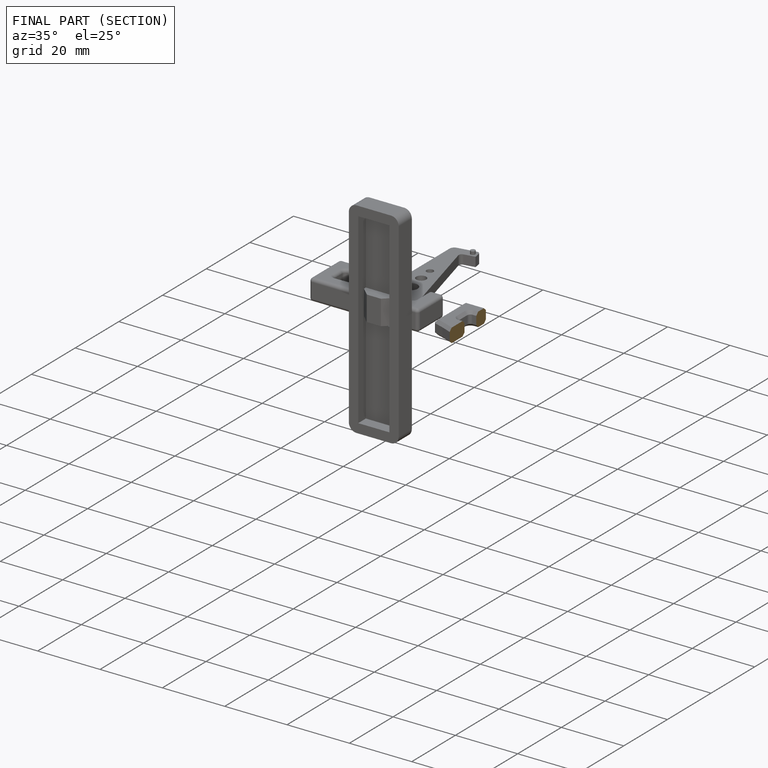
[diagram: finished part — half-section view (interior)]
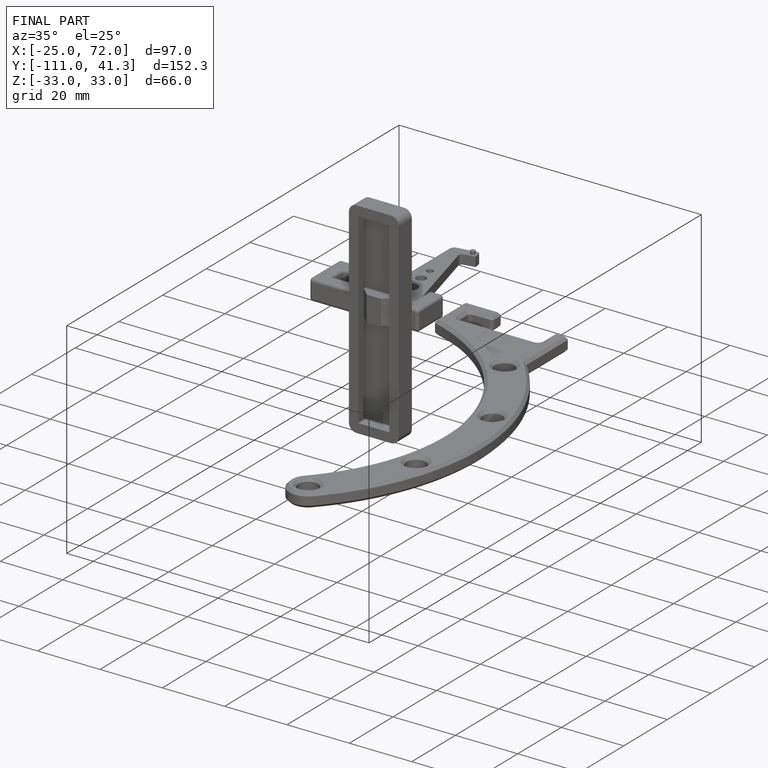
[diagram: finished part — iso view with bounding-box wireframe]
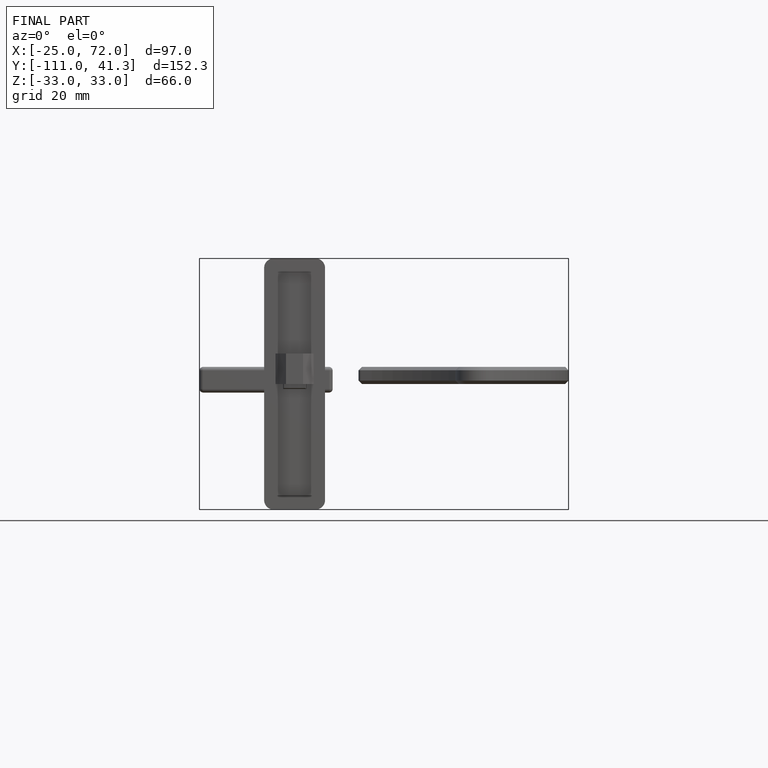
[diagram: finished part — front view with bounding-box wireframe]
